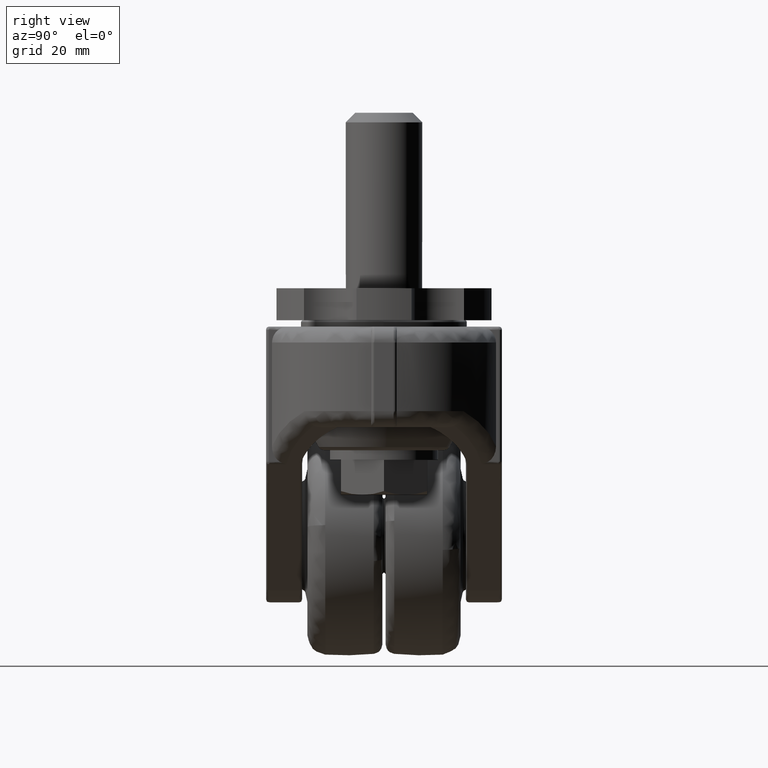
[diagram: clean part render]
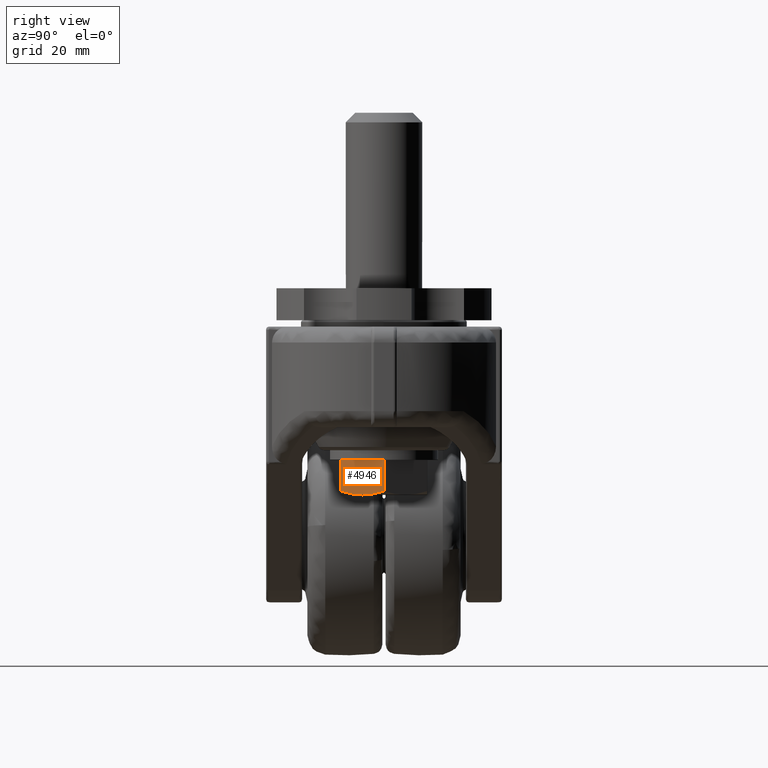
[diagram: same view with one face highlighted and labeled with its STEP entity id]
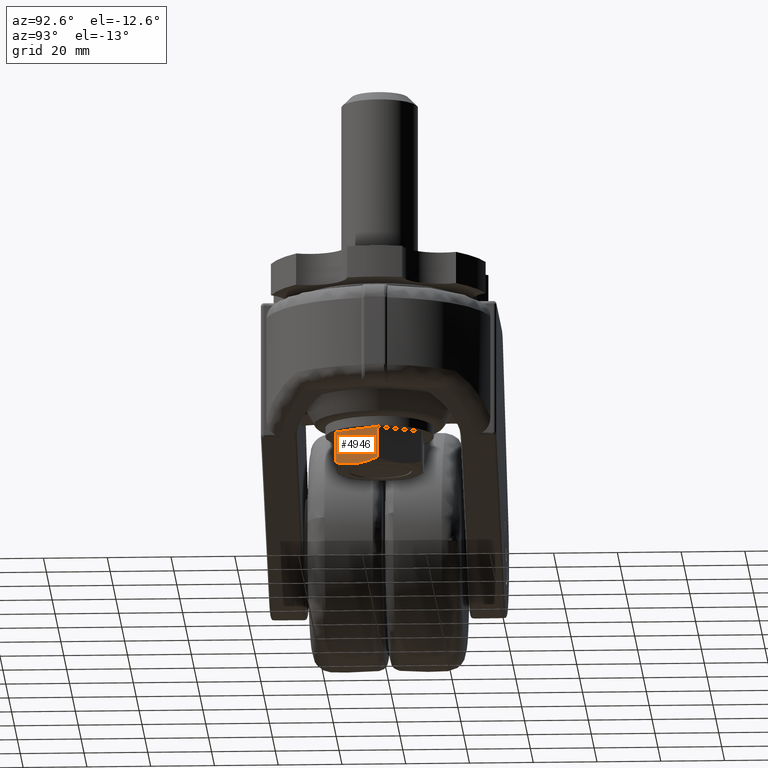
[diagram: same view with one face highlighted and labeled with its STEP entity id]
A machine part, right view. The second image highlights one B-rep face of the part: STEP entity #4946.
A second angle (auxiliary view) of the same face is appended — the face is thin or edge-on in the first view.
In plain terms, the highlighted face is a freeform B-spline surface patch.
Its self-contained STEP definition (entity closure, byte-faithful):
#4495=CARTESIAN_POINT('',(11.691343225544900,-6.750000475370140,-61.750000000000000));
#4496=VERTEX_POINT('',#4495);
#4670=CARTESIAN_POINT('',(15.588456999999901,1.815785E-014,-60.544229063314098));
#4671=VERTEX_POINT('',#4670);
#4672=CARTESIAN_POINT('',(15.588456999999901,1.815785E-014,-60.544229063314098));
#4673=CARTESIAN_POINT('',(14.952132053083030,-1.102147086437674,-60.911611442708931));
#4674=CARTESIAN_POINT('',(14.311167872603139,-2.212329560737380,-61.214401019337622));
#4675=CARTESIAN_POINT('',(13.339696006808961,-3.894968111416498,-61.528997394916850));
#4676=CARTESIAN_POINT('',(13.014197112059660,-4.458748708460226,-61.610542398824329));
#4677=CARTESIAN_POINT('',(12.359408582413559,-5.592875656773162,-61.720853315576242));
#4678=CARTESIAN_POINT('',(12.030115671926520,-6.163227681530823,-61.749573621845492));
#4679=CARTESIAN_POINT('',(11.696307811123150,-6.741399829262863,-61.749998918336637));
#4680=CARTESIAN_POINT('',(11.693825200149220,-6.745699837403254,-61.750000499474837));
#4681=CARTESIAN_POINT('',(11.691343225544900,-6.750000475370140,-61.750000000000000));
#4682=B_SPLINE_CURVE_WITH_KNOTS('',3,(#4672,#4673,#4674,#4675,#4676,#4677,#4678,#4679,#4680,#4681),.UNSPECIFIED.,.F.,.U.,(4,2,2,2,4),(0.0,0.249999999999999,0.374999999999999,0.499999999999999,0.500936578376626),.UNSPECIFIED.);
#4683=EDGE_CURVE('',#4671,#4496,#4682,.T.);
#4718=CARTESIAN_POINT('',(7.794228000000000,-13.500000000000000,-60.544229091552303));
#4719=VERTEX_POINT('',#4718);
#4720=CARTESIAN_POINT('',(11.691343225544900,-6.750000475370140,-61.750000000000000));
#4721=CARTESIAN_POINT('',(11.610986277292090,-6.889181053899619,-61.750000467480390));
#4722=CARTESIAN_POINT('',(11.530511043428319,-7.028568241158419,-61.748343084287526));
#4723=CARTESIAN_POINT('',(11.366830714795700,-7.312070873239205,-61.741587398070969));
#4724=CARTESIAN_POINT('',(11.283751762006689,-7.455967833753405,-61.736387073645410));
#4725=CARTESIAN_POINT('',(11.035131147039991,-7.886591350466907,-61.715582126269517));
#4726=CARTESIAN_POINT('',(10.869959936869121,-8.172676264998760,-61.694759038592792));
#4727=CARTESIAN_POINT('',(10.376099138699029,-9.028068219135088,-61.612333159393202));
#4728=CARTESIAN_POINT('',(10.049066247262511,-9.594505776254977,-61.530727094362042));
#4729=CARTESIAN_POINT('',(9.073789942498410,-11.283733808214921,-61.215608487529231));
#4730=CARTESIAN_POINT('',(8.431346211879708,-12.396478938407061,-60.912069459224583));
#4731=CARTESIAN_POINT('',(7.794228000000000,-13.500000000000000,-60.544229091552303));
#4732=B_SPLINE_CURVE_WITH_KNOTS('',3,(#4720,#4721,#4722,#4723,#4724,#4725,#4726,#4727,#4728,#4729,#4730,#4731),.UNSPECIFIED.,.F.,.U.,(4,2,2,2,2,4),(0.500936578376626,0.531249999999998,0.562499999999998,0.624999999999999,0.749999999999999,1.0),.UNSPECIFIED.);
#4733=EDGE_CURVE('',#4496,#4719,#4732,.T.);
#4908=CARTESIAN_POINT('',(15.588456999999950,0.0,-50.750000000000000));
#4909=VERTEX_POINT('',#4908);
#4915=CARTESIAN_POINT('',(15.588456999999901,1.815785E-014,-60.544229063314098));
#4916=CARTESIAN_POINT('',(15.588456999999950,0.0,-50.750000000000000));
#4917=QUASI_UNIFORM_CURVE('',1,(#4915,#4916),.UNSPECIFIED.,.F.,.U.);
#4918=EDGE_CURVE('',#4671,#4909,#4917,.T.);
#4924=CARTESIAN_POINT('',(7.404906276556532,-14.174324973834381,-62.299449978679867));
#4925=CARTESIAN_POINT('',(15.977778932500730,0.674325335932603,-62.299449978679867));
#4926=CARTESIAN_POINT('',(7.404906276556532,-14.174324973834381,-50.200549726277131));
#4927=CARTESIAN_POINT('',(15.977778932500730,0.674325335932603,-50.200549726277131));
#4928=B_SPLINE_SURFACE_WITH_KNOTS('',1,1,((#4924,#4926),(#4925,#4927)),.UNSPECIFIED.,.F.,.F.,.U.,(2,2),(2,2),(0.0,17.145744708141990),(0.0,12.098900252402739),.UNSPECIFIED.);
#4929=ORIENTED_EDGE('',*,*,#4683,.F.);
#4930=ORIENTED_EDGE('',*,*,#4918,.T.);
#4931=CARTESIAN_POINT('',(7.794227999999810,-13.500000000000000,-50.750000000000000));
#4932=VERTEX_POINT('',#4931);
#4933=CARTESIAN_POINT('',(7.794227999999810,-13.500000000000000,-50.750000000000000));
#4934=CARTESIAN_POINT('',(15.588456999999950,0.0,-50.750000000000000));
#4935=QUASI_UNIFORM_CURVE('',1,(#4933,#4934),.UNSPECIFIED.,.F.,.U.);
#4936=EDGE_CURVE('',#4932,#4909,#4935,.T.);
#4937=ORIENTED_EDGE('',*,*,#4936,.F.);
#4938=CARTESIAN_POINT('',(7.794228000000000,-13.500000000000000,-60.544229091552303));
#4939=CARTESIAN_POINT('',(7.794227999999810,-13.500000000000000,-50.750000000000000));
#4940=QUASI_UNIFORM_CURVE('',1,(#4938,#4939),.UNSPECIFIED.,.F.,.U.);
#4941=EDGE_CURVE('',#4719,#4932,#4940,.T.);
#4942=ORIENTED_EDGE('',*,*,#4941,.F.);
#4943=ORIENTED_EDGE('',*,*,#4733,.F.);
#4944=EDGE_LOOP('',(#4929,#4930,#4937,#4942,#4943));
#4945=FACE_OUTER_BOUND('',#4944,.T.);
#4946=ADVANCED_FACE('',(#4945),#4928,.T.);